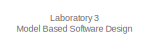
[diagram: root canvas - part 1/3, top center region]
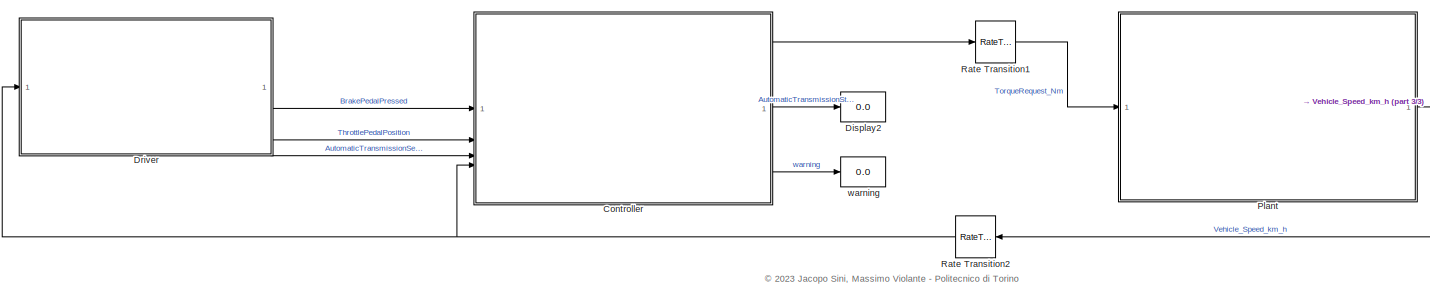
[diagram: root canvas - part 2/3, full width, bottom band]
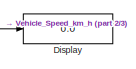
[diagram: root canvas - part 3/3, middle right region]
MODEL slx_4c51170a69a7
KIND model
CONFIG AbsTol = auto
CONFIG EnableMultiTasking = off
CONFIG FixedStep = 0.01
CONFIG InitFcn = init_fn()
CONFIG MaxStep = auto
CONFIG MinStep = auto
CONFIG RelTol = 1e-3
CONFIG SampleTimeConstraint = Unconstrained
CONFIG SolverName = ode45
CONFIG StartTime = 0.0
CONFIG StopTime = 100
BLOCK [ModelReference] Controller
  ModelNameDialog = controller
  ModelReferenceVersion = 7.56
  PortSchema = {"entries":[{"content":{"sides":[{"content":{"connectorIds":["In2","In1","In3","In4"]},"type":"ConnectorPlacement.EquallySpacedRectSide","uuid":"5e260b81-e1ce-497c-8572-ac5c2182ee27"},{"content":{"connectorIds":["Out1","Out2","Out3"],"side":"RIGHT"},"type":"ConnectorPlacement.EquallySpacedRectSide","uuid":"4325f63c-e453-4c79-ab01-1476da99aa25"},{"content":{"side":"TOP"},"type":"ConnectorPlacement....<+254ch>
BLOCK [Display] Display
  Decimation = 1
BLOCK [Display] Display2
  Decimation = 1
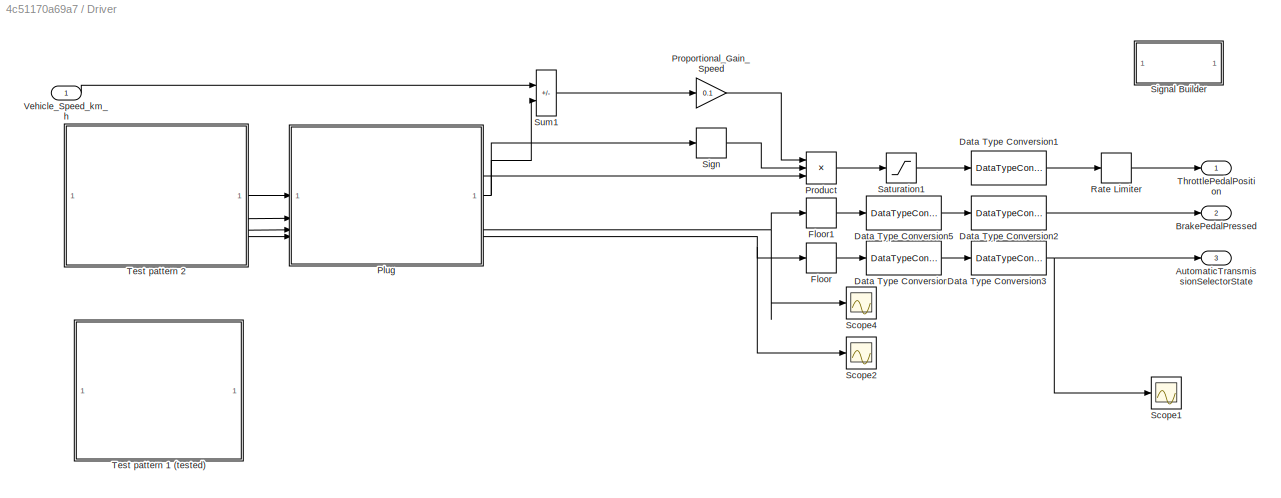
BLOCK [SubSystem] Driver
BLOCK [Outport] Driver/AutomaticTransmissionSelectorState
  OutDataTypeStr = Enum: TransmissionState
  Port = 3
BLOCK [Outport] Driver/BrakePedalPressed
  Port = 2
BLOCK [DataTypeConversion] Driver/Data Type Conversion1
  LockScale = on
  OutDataTypeStr = single
  RndMeth = Floor
  SaturateOnIntegerOverflow = off
BLOCK [DataTypeConversion] Driver/Data Type Conversion2
  LockScale = on
  OutDataTypeStr = boolean
  RndMeth = Floor
  SaturateOnIntegerOverflow = off
BLOCK [DataTypeConversion] Driver/Data Type Conversion3
  LockScale = on
  OutDataTypeStr = Enum: TransmissionState
  RndMeth = Floor
  SaturateOnIntegerOverflow = off
BLOCK [DataTypeConversion] Driver/Data Type Conversion4
  LockScale = on
  OutDataTypeStr = int32
  RndMeth = Floor
  SaturateOnIntegerOverflow = off
BLOCK [DataTypeConversion] Driver/Data Type Conversion5
  LockScale = on
  OutDataTypeStr = int32
  RndMeth = Floor
  SaturateOnIntegerOverflow = off
BLOCK [Rounding] Driver/Floor
  Operator = round
BLOCK [Rounding] Driver/Floor1
  Operator = round
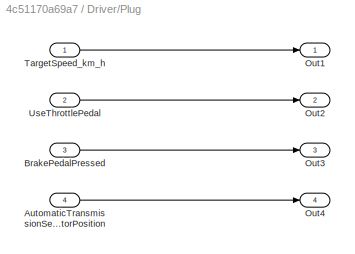
BLOCK [SubSystem] Driver/Plug
BLOCK [Inport] Driver/Plug/AutomaticTransmissionSelectorPosition
  Port = 4
BLOCK [Inport] Driver/Plug/BrakePedalPressed
  Port = 3
BLOCK [Outport] Driver/Plug/Out1
BLOCK [Outport] Driver/Plug/Out2
  Port = 2
BLOCK [Outport] Driver/Plug/Out3
  Port = 3
BLOCK [Outport] Driver/Plug/Out4
  Port = 4
BLOCK [Inport] Driver/Plug/TargetSpeed_km_h
BLOCK [Inport] Driver/Plug/UseThrottlePedal
  Port = 2
BLOCK [Product] Driver/Product
  Inputs = 3
BLOCK [Gain] Driver/Proportional_Gain_Speed
  Gain = 0.1
BLOCK [RateLimiter] Driver/Rate Limiter
  RisingSlewLimit = 0.5
  SampleTimeMode = inherited
BLOCK [Saturate] Driver/Saturation1
  LowerLimit = 0
  UpperLimit = 1
BLOCK [Scope] Driver/Scope1
  Floating = off
  NumInputPorts = 1
  ScopeSpecificationString = Simulink.scopes.TimeScopeBlockCfg('CurrentConfiguration', extmgr.ConfigurationSet(extmgr.Configuration('Core','General UI',true),extmgr.Configuration('Core','Source UI',true),extmgr.Configuration('Sources','WiredSimulink',true,'DataLoggingVariableName','ScopeData2'),extmgr.Configuration('Visuals','Time Domain',true,'SerializedDisplays',{struct('MinYLimReal','-0.5','MaxYLimReal','4.5','YLabelReal',...<+1356ch>
BLOCK [Scope] Driver/Scope2
  Floating = off
  NumInputPorts = 1
  ScopeSpecificationString = Simulink.scopes.TimeScopeBlockCfg('CurrentConfiguration', extmgr.ConfigurationSet(extmgr.Configuration('Core','General UI',true),extmgr.Configuration('Core','Source UI',true),extmgr.Configuration('Sources','WiredSimulink',true,'DataLoggingVariableName','ScopeData1'),extmgr.Configuration('Visuals','Time Domain',true,'SerializedDisplays',{struct('MinYLimReal','-0.5','MaxYLimReal','4.5','YLabelReal',...<+1354ch>
BLOCK [Scope] Driver/Scope4
  Floating = off
  NumInputPorts = 1
  ScopeSpecificationString = Simulink.scopes.TimeScopeBlockCfg('CurrentConfiguration', extmgr.ConfigurationSet(extmgr.Configuration('Core','General UI',true),extmgr.Configuration('Core','Source UI',true),extmgr.Configuration('Sources','WiredSimulink',true,'DataLoggingVariableName','ScopeData3'),extmgr.Configuration('Visuals','Time Domain',true,'SerializedDisplays',{struct('MinYLimReal','-0.125','MaxYLimReal','1.125','YLabelRe...<+1366ch>
BLOCK [Signum] Driver/Sign
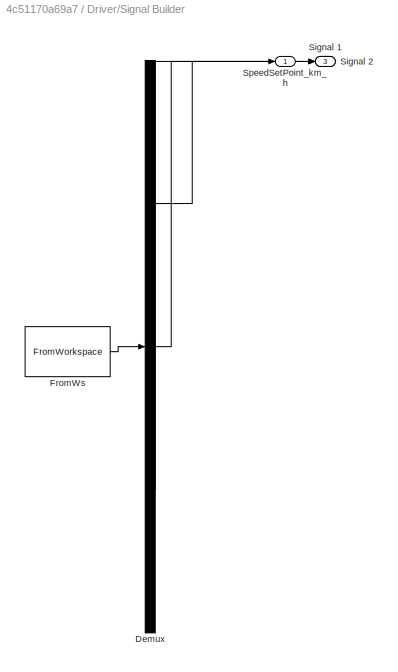
BLOCK [SubSystem] Driver/Signal Builder
  ClipboardFcn = sigbuilder_block('clipboard');
  CloseFcn = sigbuilder_block('close');
  ContinueFcn = sigbuilder_block('continue');
  CopyFcn = sigbuilder_block('copy');
  DeleteFcn = sigbuilder_block('delete');
  LoadFcn = sigbuilder_block('load');
  MaskHideContents = on
  ModelCloseFcn = sigbuilder_block('modelClose');
  NameChangeFcn = sigbuilder_block('namechange');
  OpenFcn = sigbuilder_block('open',[0 84 2240 1072 ]);
  PauseFcn = sigbuilder_block('pause');
  PreSaveFcn = sigbuilder_block('preSave');
  StartFcn = sigbuilder_block('start');
  StopFcn = sigbuilder_block('stop');
  Tag = STV Subsys
BLOCK [Demux] Driver/Signal Builder/Demux
  DisplayOption = none
  Outputs = 3
  Tag = STV Demux
BLOCK [FromWorkspace] Driver/Signal Builder/FromWs
  Tag = STV FromWs
  VariableName = tuvar
BLOCK [Outport] Driver/Signal Builder/Signal 1
  Port = 2
  Tag = STV Outport
BLOCK [Outport] Driver/Signal Builder/Signal 2
  Port = 3
  Tag = STV Outport
BLOCK [Outport] Driver/Signal Builder/SpeedSetPoint_km_h
  Tag = STV Outport
BLOCK [Sum] Driver/Sum1
  IconShape = rectangular
  Inputs = |-+
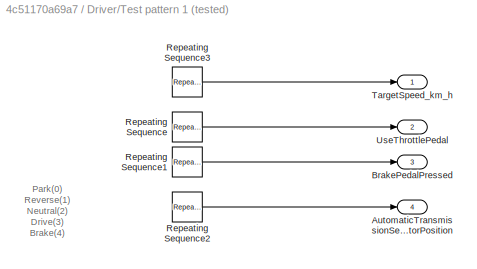
BLOCK [SubSystem] Driver/Test pattern 1 (tested)
BLOCK [Outport] Driver/Test pattern 1 (tested)/AutomaticTransmissionSelectorPosition
  Port = 4
BLOCK [Outport] Driver/Test pattern 1 (tested)/BrakePedalPressed
  Port = 3
BLOCK [Reference] Driver/Test pattern 1 (tested)/Repeating Sequence  REF=simulink/Sources/Repeating
Sequence
  SourceBlock = simulink/Sources/Repeating\nSequence
  SourceType = Repeating table
BLOCK [Reference] Driver/Test pattern 1 (tested)/Repeating Sequence1  REF=simulink/Sources/Repeating
Sequence
  SourceBlock = simulink/Sources/Repeating\nSequence
  SourceType = Repeating table
BLOCK [Reference] Driver/Test pattern 1 (tested)/Repeating Sequence2  REF=simulink/Sources/Repeating
Sequence
  SourceBlock = simulink/Sources/Repeating\nSequence
  SourceType = Repeating table
BLOCK [Reference] Driver/Test pattern 1 (tested)/Repeating Sequence3  REF=simulink/Sources/Repeating
Sequence
  SourceBlock = simulink/Sources/Repeating\nSequence
  SourceType = Repeating table
BLOCK [Outport] Driver/Test pattern 1 (tested)/TargetSpeed_km_h
BLOCK [Outport] Driver/Test pattern 1 (tested)/UseThrottlePedal
  Port = 2
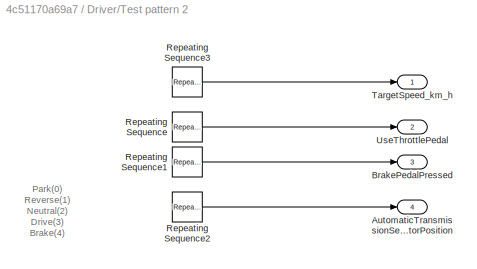
BLOCK [SubSystem] Driver/Test pattern 2
BLOCK [Outport] Driver/Test pattern 2/AutomaticTransmissionSelectorPosition
  Port = 4
BLOCK [Outport] Driver/Test pattern 2/BrakePedalPressed
  Port = 3
BLOCK [Reference] Driver/Test pattern 2/Repeating Sequence  REF=simulink/Sources/Repeating
Sequence
  SourceBlock = simulink/Sources/Repeating\nSequence
  SourceType = Repeating table
BLOCK [Reference] Driver/Test pattern 2/Repeating Sequence1  REF=simulink/Sources/Repeating
Sequence
  SourceBlock = simulink/Sources/Repeating\nSequence
  SourceType = Repeating table
BLOCK [Reference] Driver/Test pattern 2/Repeating Sequence2  REF=simulink/Sources/Repeating
Sequence
  SourceBlock = simulink/Sources/Repeating\nSequence
  SourceType = Repeating table
BLOCK [Reference] Driver/Test pattern 2/Repeating Sequence3  REF=simulink/Sources/Repeating
Sequence
  SourceBlock = simulink/Sources/Repeating\nSequence
  SourceType = Repeating table
BLOCK [Outport] Driver/Test pattern 2/TargetSpeed_km_h
BLOCK [Outport] Driver/Test pattern 2/UseThrottlePedal
  Port = 2
BLOCK [Outport] Driver/ThrottlePedalPosition
BLOCK [Inport] Driver/Vehicle_Speed_km_h
BLOCK [ModelReference] Plant
  ModelNameDialog = plant
  ModelReferenceVersion = 7.1
BLOCK [RateTransition] Rate Transition1
BLOCK [RateTransition] Rate Transition2
  NameLocation = top
BLOCK [Display] warning
  Decimation = 1
ANNOTATION (root): Laboratory 3 Model Based Software Design
ANNOTATION (root): <copyright redacted>
ANNOTATION Driver/Test pattern 1 (tested): Park(0) Reverse(1) Neutral(2) Drive(3) Brake(4)
ANNOTATION Driver/Test pattern 2: Park(0) Reverse(1) Neutral(2) Drive(3) Brake(4)
LINE Controller:1 -> Rate Transition1:1
LINE Controller:2 -> Display2:1
LINE Controller:3 -> warning:1
LINE Driver/Data Type Conversion1:1 -> Driver/Rate Limiter:1
LINE Driver/Data Type Conversion2:1 -> Driver/BrakePedalPressed:1
NET Driver/Data Type Conversion3:1 -> Driver/AutomaticTransmissionSelectorState:1, Driver/Scope1:1
LINE Driver/Data Type Conversion4:1 -> Driver/Data Type Conversion3:1
LINE Driver/Data Type Conversion5:1 -> Driver/Data Type Conversion2:1
LINE Driver/Floor1:1 -> Driver/Data Type Conversion5:1
LINE Driver/Floor:1 -> Driver/Data Type Conversion4:1
LINE Driver/Plug/AutomaticTransmissionSelectorPosition:1 -> Driver/Plug/Out4:1
LINE Driver/Plug/BrakePedalPressed:1 -> Driver/Plug/Out3:1
LINE Driver/Plug/TargetSpeed_km_h:1 -> Driver/Plug/Out1:1
LINE Driver/Plug/UseThrottlePedal:1 -> Driver/Plug/Out2:1
NET Driver/Plug:1 -> Driver/Sign:1, Driver/Sum1:2
LINE Driver/Plug:2 -> Driver/Product:3
NET Driver/Plug:3 -> Driver/Floor1:1, Driver/Scope4:1
NET Driver/Plug:4 -> Driver/Floor:1, Driver/Scope2:1
LINE Driver/Product:1 -> Driver/Saturation1:1
LINE Driver/Proportional_Gain_Speed:1 -> Driver/Product:1
LINE Driver/Rate Limiter:1 -> Driver/ThrottlePedalPosition:1
LINE Driver/Saturation1:1 -> Driver/Data Type Conversion1:1
LINE Driver/Sign:1 -> Driver/Product:2
LINE Driver/Sum1:1 -> Driver/Proportional_Gain_Speed:1
LINE Driver/Test pattern 1 (tested)/Repeating Sequence1:1 -> Driver/Test pattern 1 (tested)/BrakePedalPressed:1
LINE Driver/Test pattern 1 (tested)/Repeating Sequence2:1 -> Driver/Test pattern 1 (tested)/AutomaticTransmissionSelectorPosition:1
LINE Driver/Test pattern 1 (tested)/Repeating Sequence3:1 -> Driver/Test pattern 1 (tested)/TargetSpeed_km_h:1
LINE Driver/Test pattern 1 (tested)/Repeating Sequence:1 -> Driver/Test pattern 1 (tested)/UseThrottlePedal:1
LINE Driver/Test pattern 2/Repeating Sequence1:1 -> Driver/Test pattern 2/BrakePedalPressed:1
LINE Driver/Test pattern 2/Repeating Sequence2:1 -> Driver/Test pattern 2/AutomaticTransmissionSelectorPosition:1
LINE Driver/Test pattern 2/Repeating Sequence3:1 -> Driver/Test pattern 2/TargetSpeed_km_h:1
LINE Driver/Test pattern 2/Repeating Sequence:1 -> Driver/Test pattern 2/UseThrottlePedal:1
LINE Driver/Test pattern 2:1 -> Driver/Plug:1
LINE Driver/Test pattern 2:2 -> Driver/Plug:2
LINE Driver/Test pattern 2:3 -> Driver/Plug:3
LINE Driver/Test pattern 2:4 -> Driver/Plug:4
LINE Driver/Vehicle_Speed_km_h:1 -> Driver/Sum1:1
LINE Driver:1 -> Controller:2
LINE Driver:2 -> Controller:1
LINE Driver:3 -> Controller:3
NET Plant:1 -> Display:1, Rate Transition2:1
LINE Rate Transition1:1 -> Plant:1
NET Rate Transition2:1 -> Controller:4, Driver:1
note: NET lines group one-source signal fan-out (src -> all destinations, sorted); 1:1 wires keep LINE
